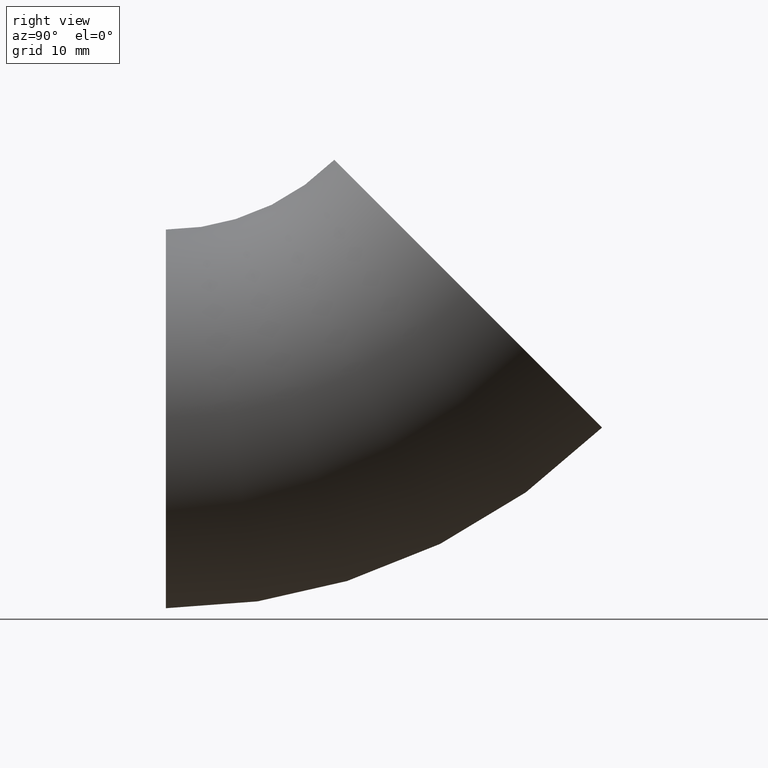
[diagram: clean part render]
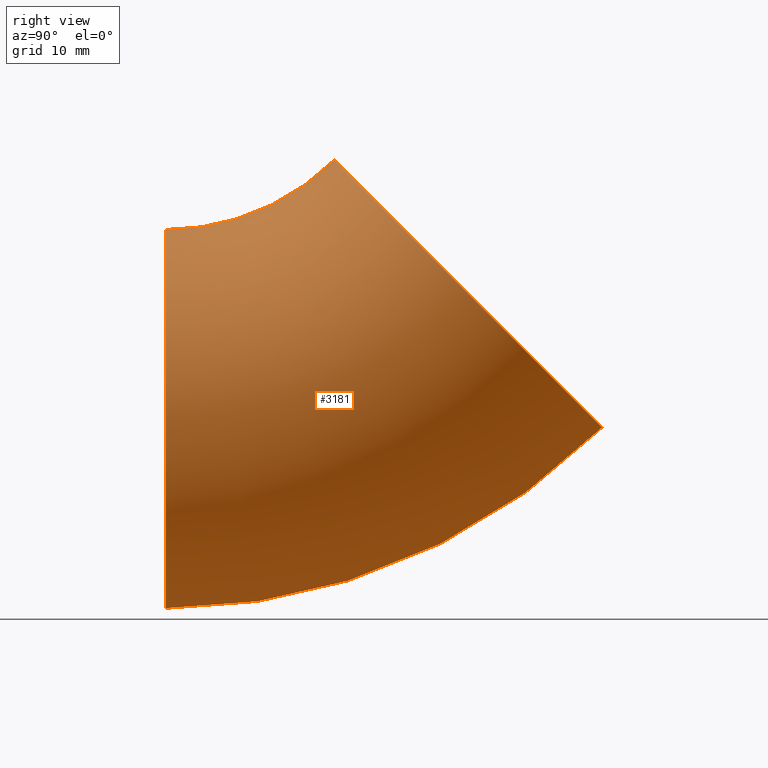
[diagram: same view with one face highlighted and labeled with its STEP entity id]
A machine part, right view. The second image highlights one B-rep face of the part: STEP entity #3181.
In plain terms, the highlighted toroidal blend (fillet) surface has major radius 38 mm and minor (blend) radius 16.85 mm.
Its self-contained STEP definition (entity closure, byte-faithful):
#254 = TOROIDAL_SURFACE ( 'NONE', #422, 38.00000000000000000, 16.85000000000000142 ) ;
#422 = AXIS2_PLACEMENT_3D ( 'NONE', #10491, #1983, #2908 ) ;
#456 = CARTESIAN_POINT ( 'NONE',  ( 0.000000000000000000, 0.000000000000000000, -21.14999999999999858 ) ) ;
#982 = ORIENTED_EDGE ( 'NONE', *, *, #2593, .T. ) ;
#1044 = DIRECTION ( 'NONE',  ( 0.000000000000000000, 0.7071067811865473507, 0.7071067811865476838 ) ) ;
#1559 = CIRCLE ( 'NONE', #3992, 16.85000000000000142 ) ;
#1983 = DIRECTION ( 'NONE',  ( -1.000000000000000000, -0.000000000000000000, -0.000000000000000000 ) ) ;
#2353 = FACE_OUTER_BOUND ( 'NONE', #2567, .T. ) ;
#2567 = EDGE_LOOP ( 'NONE', ( #982 ) ) ;
#2593 = EDGE_CURVE ( 'NONE', #6014, #6014, #9282, .T. ) ;
#2708 = DIRECTION ( 'NONE',  ( 0.000000000000000000, 1.000000000000000000, 0.000000000000000000 ) ) ;
#2908 = DIRECTION ( 'NONE',  ( 0.000000000000000000, 0.000000000000000000, 1.000000000000000000 ) ) ;
#3181 = ADVANCED_FACE ( 'NONE', ( #8366, #2353 ), #254, .T. ) ;
#3541 = EDGE_CURVE ( 'NONE', #8694, #8694, #1559, .T. ) ;
#3687 = AXIS2_PLACEMENT_3D ( 'NONE', #9503, #2708, #5344 ) ;
#3992 = AXIS2_PLACEMENT_3D ( 'NONE', #9518, #1044, #4429 ) ;
#4095 = ORIENTED_EDGE ( 'NONE', *, *, #3541, .F. ) ;
#4429 = DIRECTION ( 'NONE',  ( 0.000000000000000000, -0.7071067811865476838, 0.7071067811865473507 ) ) ;
#5344 = DIRECTION ( 'NONE',  ( 0.000000000000000000, 0.000000000000000000, 1.000000000000000000 ) ) ;
#6014 = VERTEX_POINT ( 'NONE', #456 ) ;
#7200 = CARTESIAN_POINT ( 'NONE',  ( 0.000000000000000000, 14.95530842209548261, -14.95530842209547373 ) ) ;
#8176 = EDGE_LOOP ( 'NONE', ( #4095 ) ) ;
#8366 = FACE_OUTER_BOUND ( 'NONE', #8176, .T. ) ;
#8694 = VERTEX_POINT ( 'NONE', #7200 ) ;
#9282 = CIRCLE ( 'NONE', #3687, 16.85000000000000142 ) ;
#9503 = CARTESIAN_POINT ( 'NONE',  ( 0.000000000000000000, 0.000000000000000000, -38.00000000000000000 ) ) ;
#9518 = CARTESIAN_POINT ( 'NONE',  ( 0.000000000000000000, 26.87005768508880976, -26.87005768508879910 ) ) ;
#10491 = CARTESIAN_POINT ( 'NONE',  ( 0.000000000000000000, 0.000000000000000000, 0.000000000000000000 ) ) ;